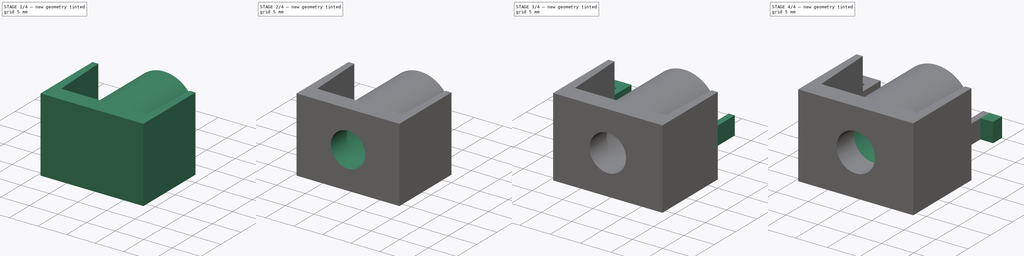
[diagram: build sequence overview — one tinted view per stage of 4, left to right]
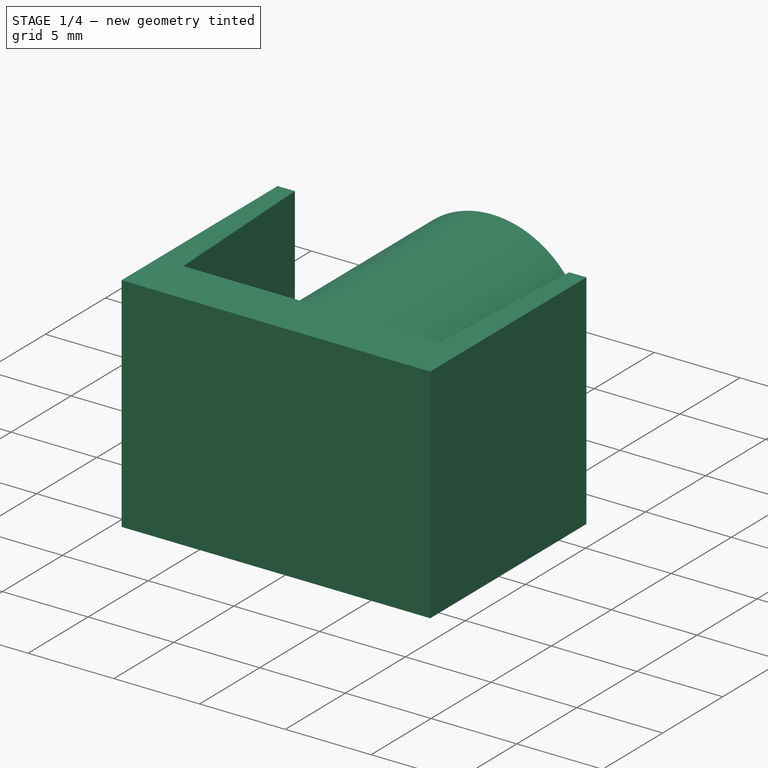
[diagram: stage 1 of 4 — iso view after this stage's code; geometry added in this stage tinted green]
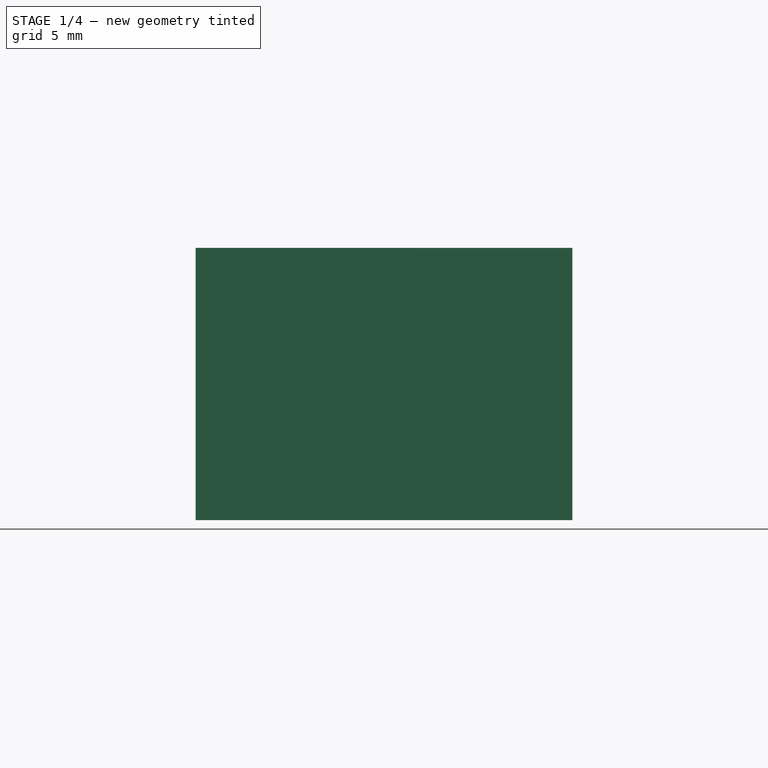
[diagram: stage 1 of 4 — front view after this stage's code; geometry added in this stage tinted green]
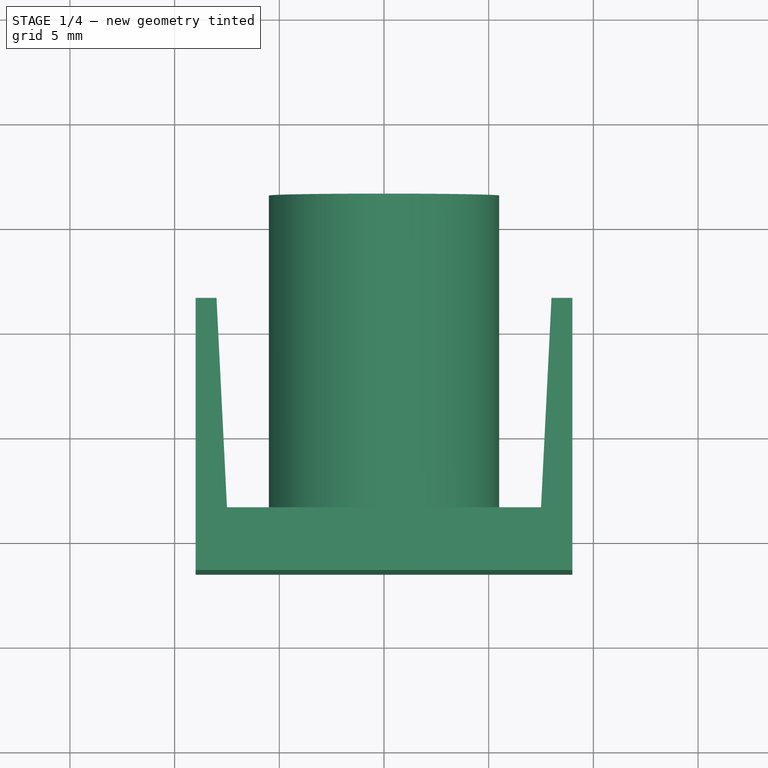
[diagram: stage 1 of 4 — top view after this stage's code; geometry added in this stage tinted green]
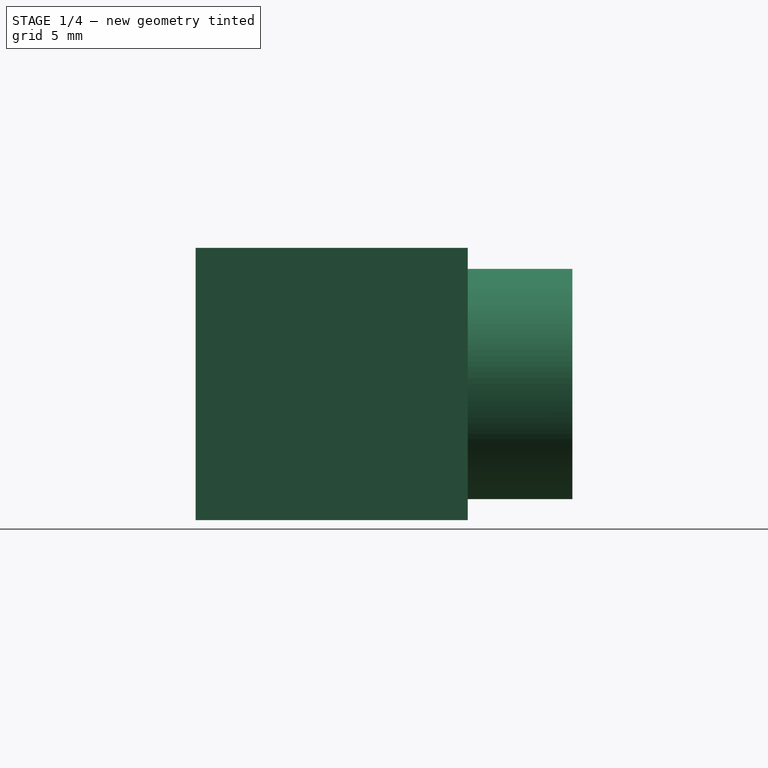
[diagram: stage 1 of 4 — right view after this stage's code; geometry added in this stage tinted green]
FCSTD DOCUMENT  (FreeCAD 0.19R23578 (Git))
Label: reel_lamp_holder
Comment: Reel lamp holder for WS212B led modules
License: All rights reserved
LicenseURL: http://en.wikipedia.org/wiki/All_rights_reserved
objects: Sketcher::SketchObject×10, PartDesign::Pad×7, PartDesign::Pocket×2, PartDesign::Body×1
note: 29 computed .brp shape members not serialized (recipe doc carries the construction recipe); baked Part::Feature solids carry a one-line shape summary decoded from their .brp

FEATURE [Sketcher::SketchObject] Sketch
  MapMode = 5
  Support = -> [XY_Plane]
  sketch-geometry (8):
    g0: LineSegment StartX=-7.5 StartY=1.5 StartZ=0 EndX=7.5 EndY=1.5 EndZ=0
    g1: LineSegment StartX=9 StartY=-1.5 StartZ=0 EndX=-9 EndY=-1.5 EndZ=0
    g2: LineSegment StartX=7.5 StartY=1.5 StartZ=0 EndX=8 EndY=11.5 EndZ=0
    g3: LineSegment StartX=9 StartY=-1.5 StartZ=0 EndX=9 EndY=11.5 EndZ=0
    g4: LineSegment StartX=-7.5 StartY=1.5 StartZ=0 EndX=-8 EndY=11.5 EndZ=0
    g5: LineSegment StartX=-9 StartY=-1.5 StartZ=0 EndX=-9 EndY=11.5 EndZ=0
    g6: LineSegment StartX=-9 StartY=11.5 StartZ=0 EndX=-8 EndY=11.5 EndZ=0
    g7: LineSegment StartX=8 StartY=11.5 StartZ=0 EndX=9 EndY=11.5 EndZ=0
  constraints (21):
    c: DistanceX(g0,g0) = 15
    c: DistanceY(g1,g0) = 3
    c: Symmetric(g0,g0,g-2)
    c: Coincident(g2,g0)
    c: Coincident(g4,g0)
    c: Coincident(g5,g1)
    c: DistanceY(g5,g4) = 0
    c: DistanceY(g3,g2) = 0
    c: DistanceX(g5,g4) = 1
    c: DistanceX(g2,g3) = 1
    c: Coincident(g6,g5)
    c: Coincident(g6,g4)
    c: Coincident(g7,g2)
    c: Coincident(g7,g3)
    c: Distance(g5) = 13
    c: Symmetric(g4,g2,g-2)
    c: DistanceX(g5,g3) = 18
    c: DistanceX(g1,g1) = 18
    c: Symmetric(g1,g1,g-2)
    c: DistanceY(g1,g-1) = 1.5
    c: Coincident(g3,g1)
FEATURE [PartDesign::Pad] Pad
  Direction = (1,1,1)
  Length = 13
  Length2 = 100
  Profile = -> Sketch
  Type = 0
FEATURE [Sketcher::SketchObject] Sketch001
  ExternalGeometry = -> [Pad]
  MapMode = 5
  Placement = pos=(0,1.5,0) rot=(0,0.707107,0.707107;3.14159rad)
  Support = -> [Pad]
  sketch-geometry (1):
    g0: Circle CenterX=0 CenterY=6.5 CenterZ=0 NormalX=0 NormalY=0 NormalZ=1 AngleXU=0 Radius=5.5
  constraints (3):
    c: Radius(g0) = 5.5
    c: PointOnObject(g0,g-2)
    c: DistanceY(g-1,g0) = 6.5
FEATURE [PartDesign::Pad] Pad001
  BaseFeature = -> Pad
  Direction = (1,1,1)
  Length = 15
  Length2 = 100
  Profile = -> Sketch001
  Type = 0
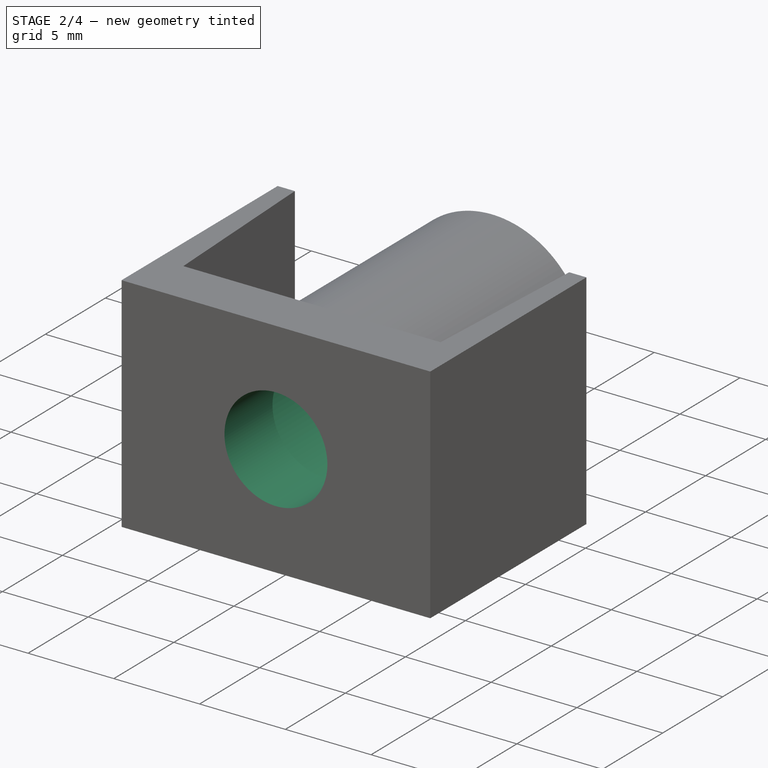
[diagram: stage 2 of 4 — iso view after this stage's code; geometry added in this stage tinted green]
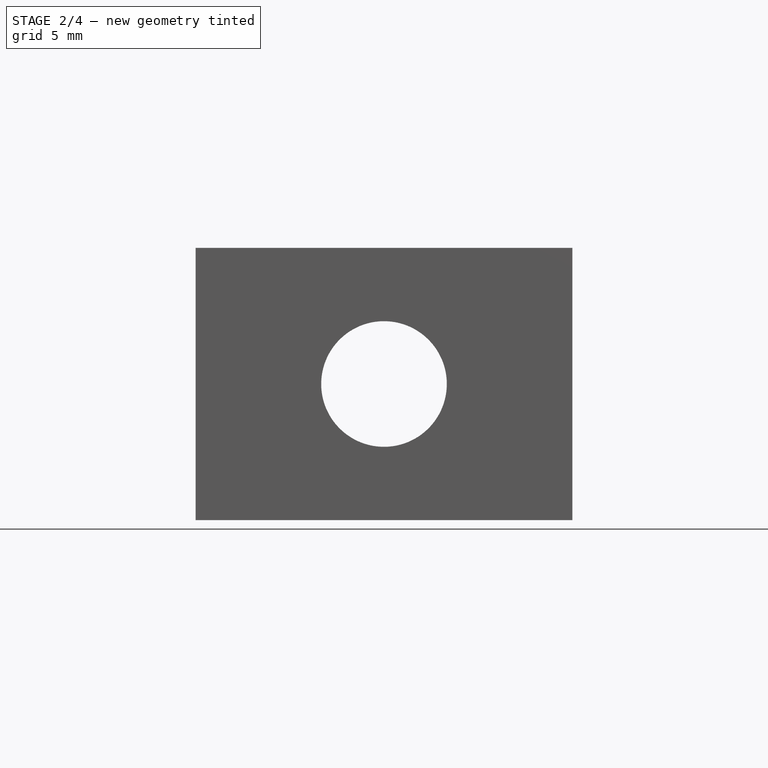
[diagram: stage 2 of 4 — front view after this stage's code; geometry added in this stage tinted green]
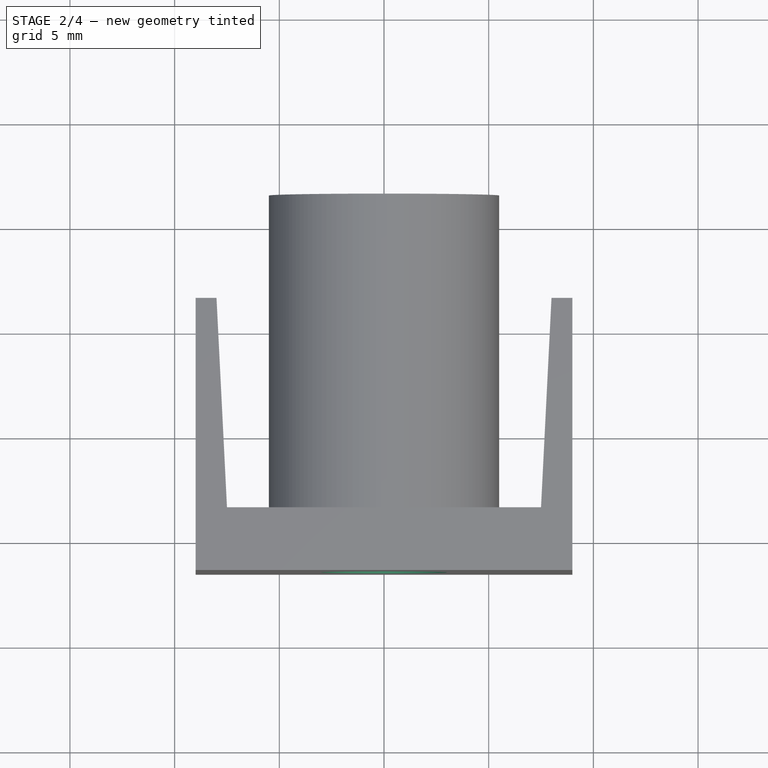
[diagram: stage 2 of 4 — top view after this stage's code; geometry added in this stage tinted green]
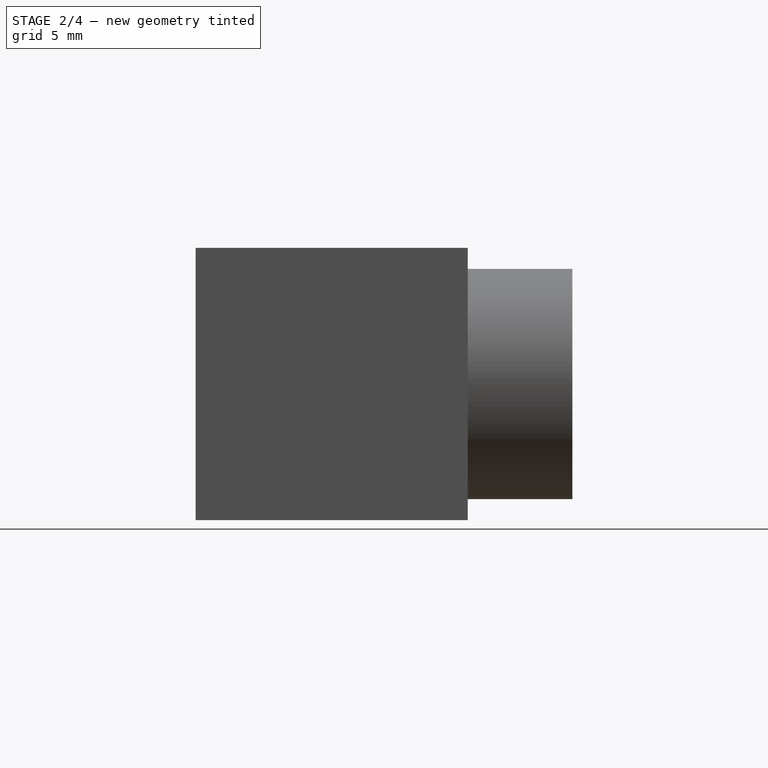
[diagram: stage 2 of 4 — right view after this stage's code; geometry added in this stage tinted green]
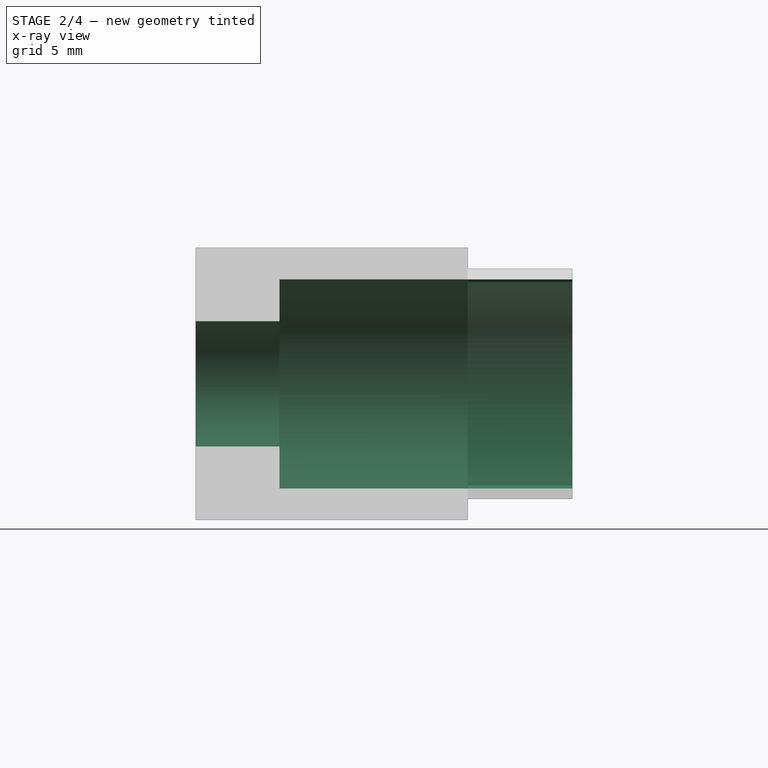
[diagram: stage 2 of 4 — x-ray composite at the right view; earlier geometry ghosted, this stage's added geometry solid]
FEATURE [Sketcher::SketchObject] Sketch002
  ExternalGeometry = -> [Pad001]
  MapMode = 5
  Placement = pos=(0,16.5,-3.5e-15) rot=(0,0.707107,0.707107;3.14159rad)
  Support = -> [Pad001]
  sketch-geometry (1):
    g0: Circle CenterX=-2e-16 CenterY=6.5 CenterZ=0 NormalX=0 NormalY=0 NormalZ=1 AngleXU=0 Radius=5
  constraints (2):
    c: Coincident(g0,g-3)
    c: Radius(g0) = 5
FEATURE [PartDesign::Pocket] Pocket
  BaseFeature = -> Pad001
  Length = 14
  Length2 = 100
  Profile = -> Sketch002
  Type = 0
FEATURE [Sketcher::SketchObject] Sketch003
  ExternalGeometry = -> [Pocket]
  MapMode = 5
  Placement = pos=(-6e-16,2.5,-1e-15) rot=(0,0.707107,0.707107;3.14159rad)
  Support = -> [Pocket]
  sketch-geometry (1):
    g0: Circle CenterX=0 CenterY=6.5 CenterZ=0 NormalX=0 NormalY=0 NormalZ=1 AngleXU=0 Radius=3
  constraints (2):
    c: Radius(g0) = 3
    c: Coincident(g0,g-3)
FEATURE [PartDesign::Pocket] Pocket001
  BaseFeature = -> Pocket
  Length = 5
  Length2 = 100
  Profile = -> Sketch003
  Type = 1
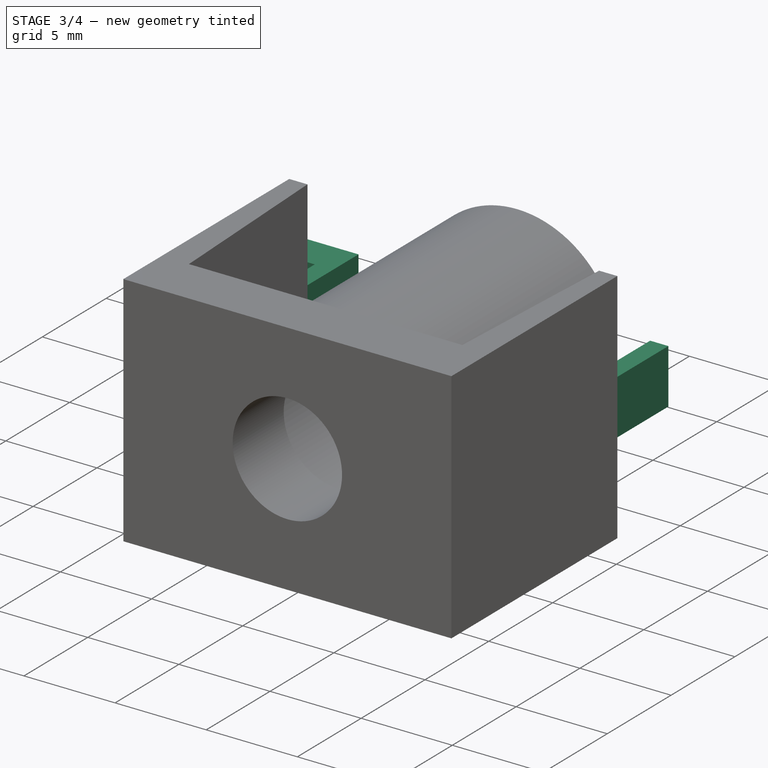
[diagram: stage 3 of 4 — iso view after this stage's code; geometry added in this stage tinted green]
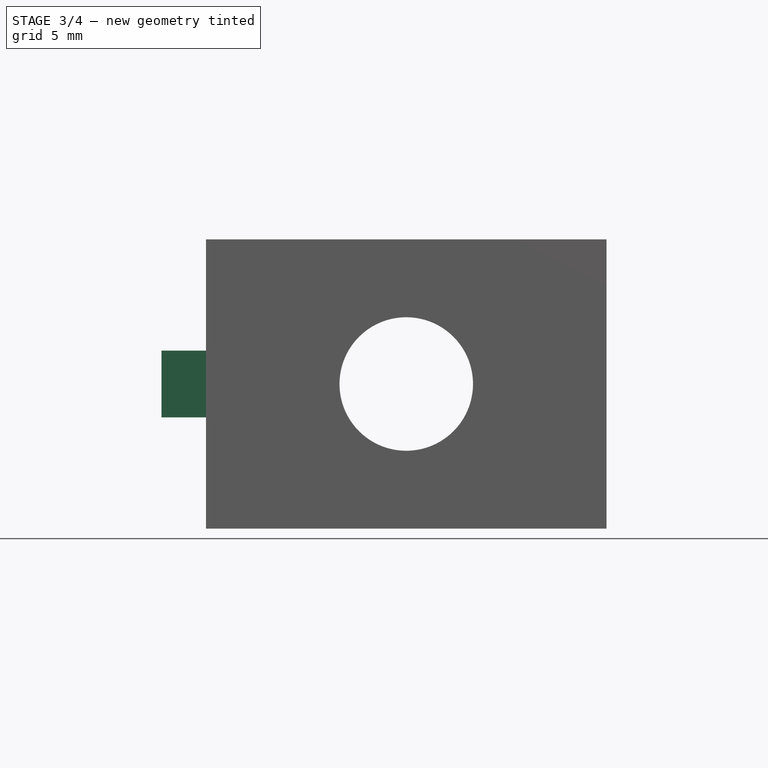
[diagram: stage 3 of 4 — front view after this stage's code; geometry added in this stage tinted green]
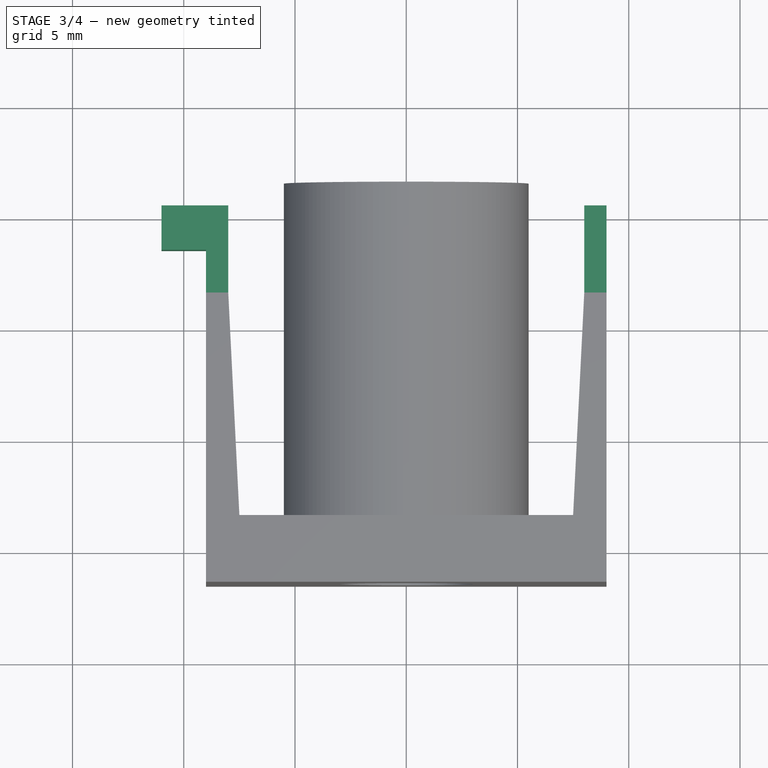
[diagram: stage 3 of 4 — top view after this stage's code; geometry added in this stage tinted green]
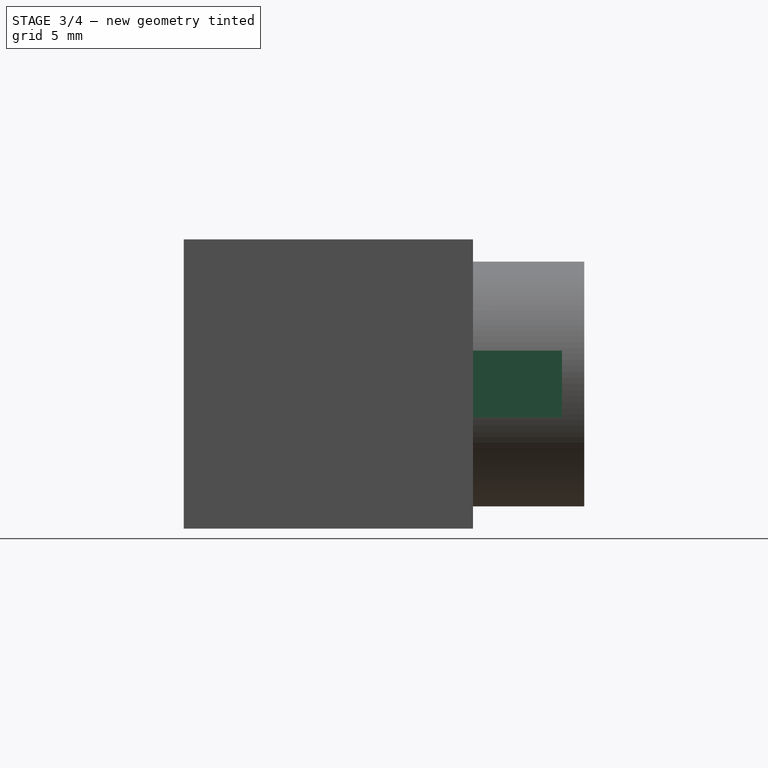
[diagram: stage 3 of 4 — right view after this stage's code; geometry added in this stage tinted green]
FEATURE [Sketcher::SketchObject] Sketch004
  MapMode = 5
  Placement = pos=(-9,0,0) rot=(0.57735,-0.57735,-0.57735;2.0944rad)
  Support = -> [Pocket001]
FEATURE [Sketcher::SketchObject] Sketch005
  ExternalGeometry = -> [Pocket001]
  MapMode = 5
  Placement = pos=(0,11.5,0) rot=(0,0.707107,0.707107;3.14159rad)
  Support = -> [Pocket001]
  expr: Constraints[11] = 13 / 2 - 1.5
  sketch-geometry (4):
    g0: LineSegment StartX=8 StartY=8 StartZ=0 EndX=9 EndY=8 EndZ=0
    g1: LineSegment StartX=9 StartY=8 StartZ=0 EndX=9 EndY=5 EndZ=0
    g2: LineSegment StartX=9 StartY=5 StartZ=0 EndX=8 EndY=5 EndZ=0
    g3: LineSegment StartX=8 StartY=5 StartZ=0 EndX=8 EndY=8 EndZ=0
  constraints (12):
    c: Coincident(g0,g1)
    c: Coincident(g1,g2)
    c: Coincident(g2,g3)
    c: Coincident(g3,g0)
    c: Horizontal(g0)
    c: Horizontal(g2)
    c: Vertical(g1)
    c: Vertical(g3)
    c: DistanceY(g1,g1) = 3
    c: DistanceX(g0,g0) = 1
    c: PointOnObject(g0,g-5)
    c: DistanceY(g0,g-4) = 5
FEATURE [PartDesign::Pad] Pad002
  BaseFeature = -> Pocket001
  Direction = (1,1,1)
  Length = 4
  Length2 = 100
  Profile = -> Sketch005
  Type = 0
FEATURE [Sketcher::SketchObject] Sketch006
  ExternalGeometry = -> [Pad002]
  MapMode = 5
  Placement = pos=(0,11.5,0) rot=(0,0.707107,0.707107;3.14159rad)
  Support = -> [Pad002]
  sketch-geometry (4):
    g0: LineSegment StartX=-9 StartY=8 StartZ=0 EndX=-8 EndY=8 EndZ=0
    g1: LineSegment StartX=-8 StartY=8 StartZ=0 EndX=-8 EndY=5 EndZ=0
    g2: LineSegment StartX=-8 StartY=5 StartZ=0 EndX=-9 EndY=5 EndZ=0
    g3: LineSegment StartX=-9 StartY=5 StartZ=0 EndX=-9 EndY=8 EndZ=0
  constraints (12):
    c: Coincident(g0,g1)
    c: Coincident(g1,g2)
    c: Coincident(g2,g3)
    c: Coincident(g3,g0)
    c: Horizontal(g0)
    c: Horizontal(g2)
    c: Vertical(g1)
    c: Vertical(g3)
    c: DistanceY(g-9,g0) = 0
    c: DistanceY(g-9,g1) = 0
    c: DistanceX(g-5,g0) = 0
    c: DistanceX(g-5,g0) = 0
FEATURE [PartDesign::Pad] Pad003
  BaseFeature = -> Pad002
  Direction = (1,1,1)
  Length = 4
  Length2 = 100
  Profile = -> Sketch006
  Type = 0
FEATURE [Sketcher::SketchObject] Sketch007
  ExternalGeometry = -> [Pad003]
  MapMode = 5
  Placement = pos=(-9,0,0) rot=(0.57735,-0.57735,-0.57735;2.0944rad)
  Support = -> [Pad003]
  sketch-geometry (4):
    g0: LineSegment StartX=-15.5 StartY=8 StartZ=0 EndX=-13.5 EndY=8 EndZ=0
    g1: LineSegment StartX=-13.5 StartY=8 StartZ=0 EndX=-13.5 EndY=5 EndZ=0
    g2: LineSegment StartX=-13.5 StartY=5 StartZ=0 EndX=-15.5 EndY=5 EndZ=0
    g3: LineSegment StartX=-15.5 StartY=5 StartZ=0 EndX=-15.5 EndY=8 EndZ=0
  constraints (10):
    c: Coincident(g0,g1)
    c: Coincident(g1,g2)
    c: Coincident(g2,g3)
    c: Coincident(g3,g0)
    c: Horizontal(g0)
    c: Horizontal(g2)
    c: Vertical(g1)
    c: Distance(g2) = 2
    c: Coincident(g0,g-4)
    c: Coincident(g2,g-5)
FEATURE [PartDesign::Pad] Pad004
  BaseFeature = -> Pad003
  Direction = (1,1,1)
  Length = 2
  Length2 = 100
  Profile = -> Sketch007
  Type = 0
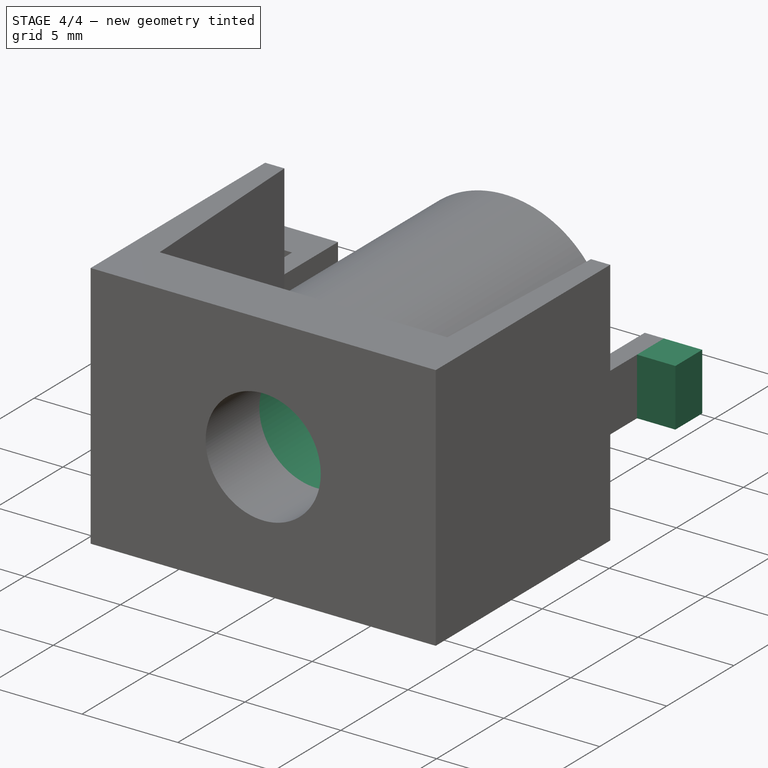
[diagram: stage 4 of 4 — iso view after this stage's code; geometry added in this stage tinted green]
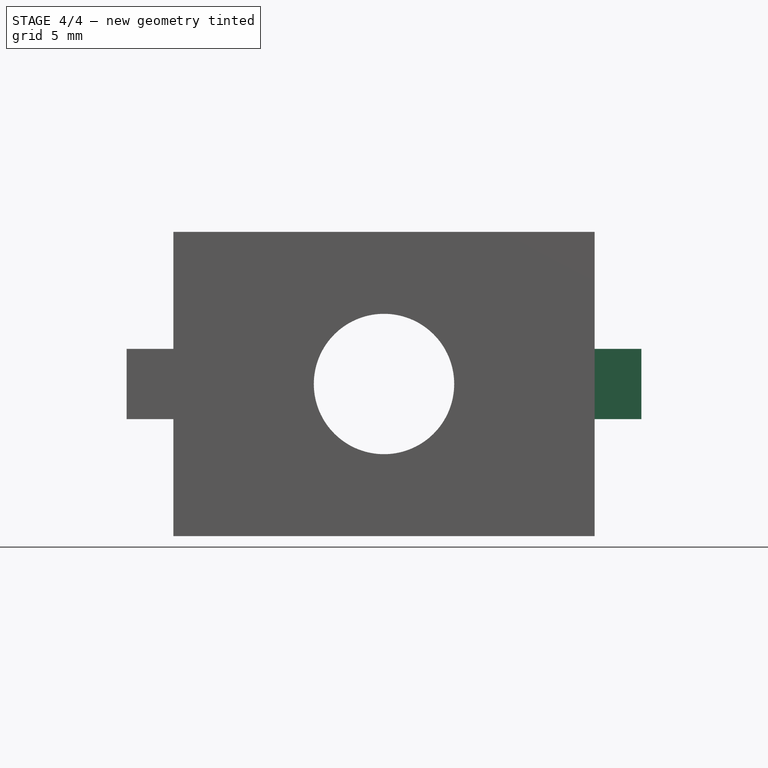
[diagram: stage 4 of 4 — front view after this stage's code; geometry added in this stage tinted green]
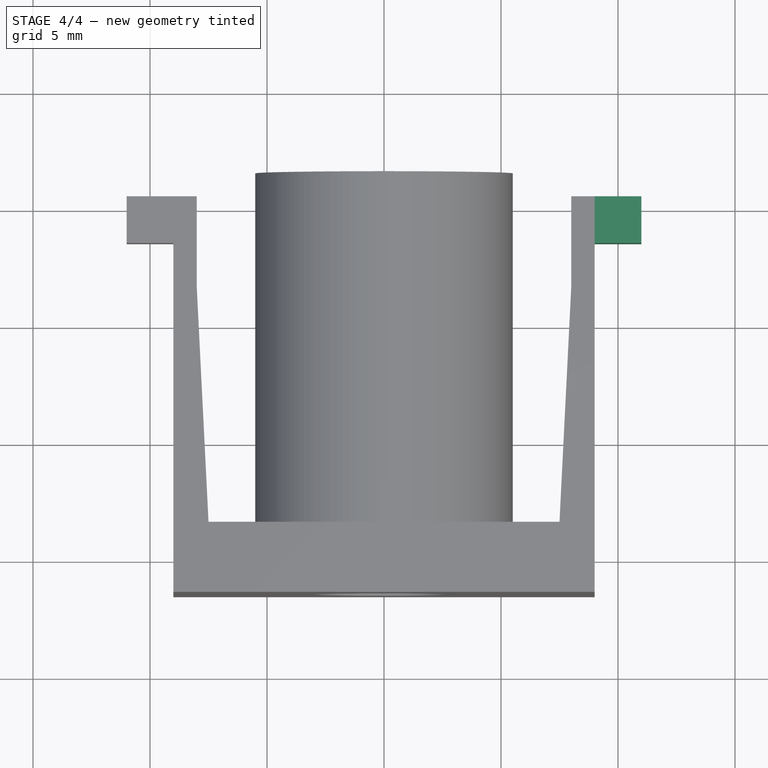
[diagram: stage 4 of 4 — top view after this stage's code; geometry added in this stage tinted green]
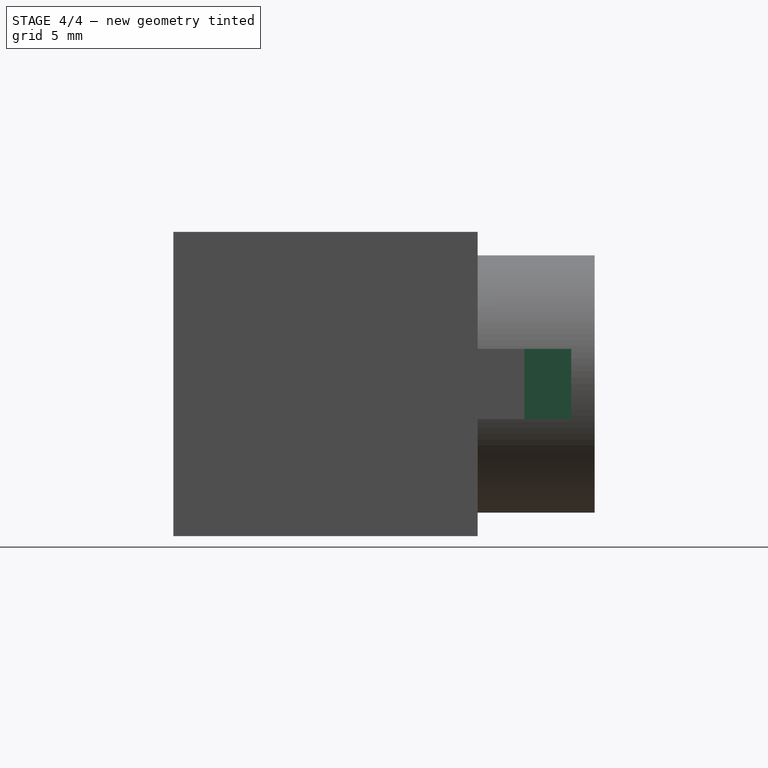
[diagram: stage 4 of 4 — right view after this stage's code; geometry added in this stage tinted green]
FEATURE [Sketcher::SketchObject] Sketch008
  ExternalGeometry = -> [Pad004]
  MapMode = 5
  Placement = pos=(9,0,0) rot=(0.57735,0.57735,0.57735;2.0944rad)
  Support = -> [Pad004]
  sketch-geometry (4):
    g0: LineSegment StartX=13.5 StartY=8 StartZ=0 EndX=15.5 EndY=8 EndZ=0
    g1: LineSegment StartX=15.5 StartY=8 StartZ=0 EndX=15.5 EndY=5 EndZ=0
    g2: LineSegment StartX=15.5 StartY=5 StartZ=0 EndX=13.5 EndY=5 EndZ=0
    g3: LineSegment StartX=13.5 StartY=5 StartZ=0 EndX=13.5 EndY=8 EndZ=0
  constraints (10):
    c: Coincident(g0,g1)
    c: Coincident(g1,g2)
    c: Coincident(g2,g3)
    c: Coincident(g3,g0)
    c: Horizontal(g0)
    c: Horizontal(g2)
    c: Vertical(g3)
    c: Coincident(g0,g-4)
    c: Coincident(g1,g-5)
    c: Distance(g0) = 2
FEATURE [PartDesign::Pad] Pad005
  BaseFeature = -> Pad004
  Direction = (1,1,1)
  Length = 2
  Length2 = 100
  Profile = -> Sketch008
  Type = 0
FEATURE [Sketcher::SketchObject] Sketch009
  ExternalGeometry = -> [Pad005]
  MapMode = 5
  Placement = pos=(-6e-16,2.5,-1e-15) rot=(0,0.707107,0.707107;3.14159rad)
  Support = -> [Pad005]
  sketch-geometry (2):
    g0: Circle CenterX=0 CenterY=6.5 CenterZ=0 NormalX=0 NormalY=0 NormalZ=1 AngleXU=0 Radius=5
    g1: Circle CenterX=0 CenterY=6.5 CenterZ=0 NormalX=0 NormalY=0 NormalZ=1 AngleXU=0 Radius=4.5
  constraints (4):
    c: Coincident(g0,g-3)
    c: Radius(g0) = 5
    c: Coincident(g1,g0)
    c: Radius(g1) = 4.5
FEATURE [PartDesign::Pad] Pad006
  BaseFeature = -> Pad005
  Direction = (1,1,1)
  Length = 13
  Length2 = 100
  Profile = -> Sketch009
  Type = 0
FEATURE [PartDesign::Body] Body
  Group = -> [Sketch,Pad,Sketch001,Pad001,Sketch002,Pocket,Sketch003,Pocket001,Sketch004,Sketch005,Pad002,Sketch006,Pad003,Sketch007,Pad004,Sketch008,Pad005,Sketch009,Pad006]
  Origin = -> Origin
  Tip = -> Pad006
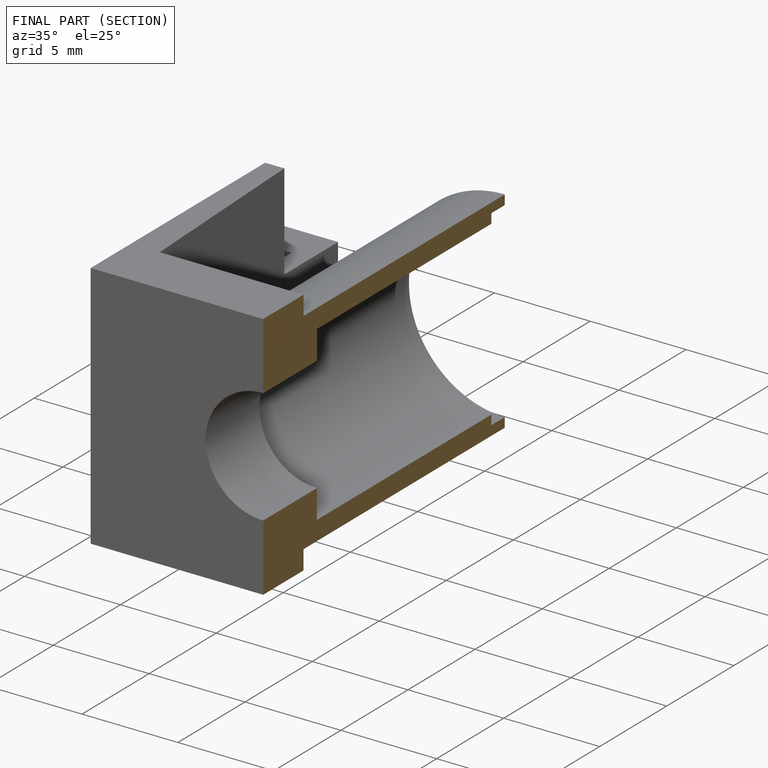
[diagram: finished part — half-section view (interior)]
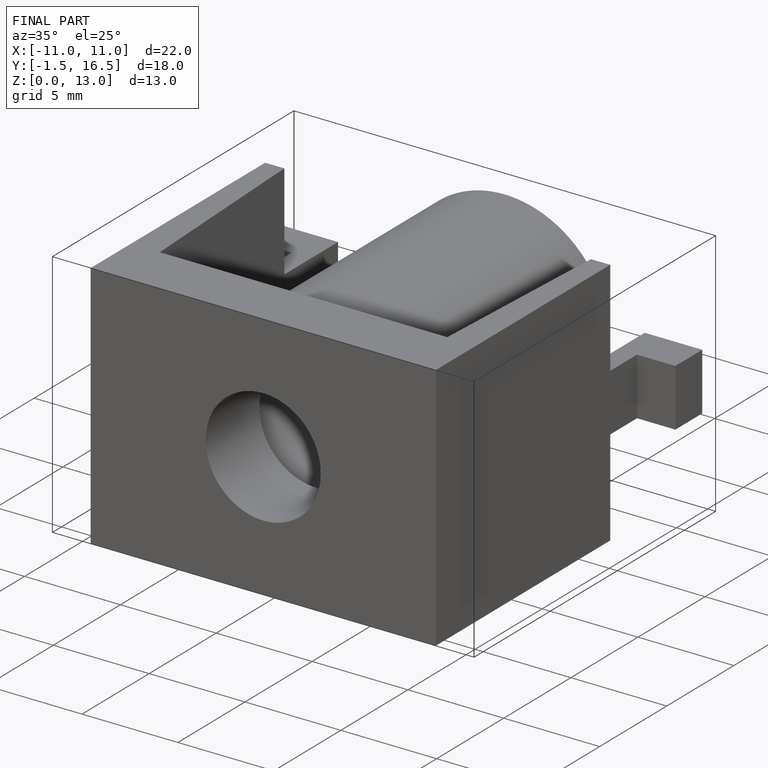
[diagram: finished part — iso view with bounding-box wireframe]
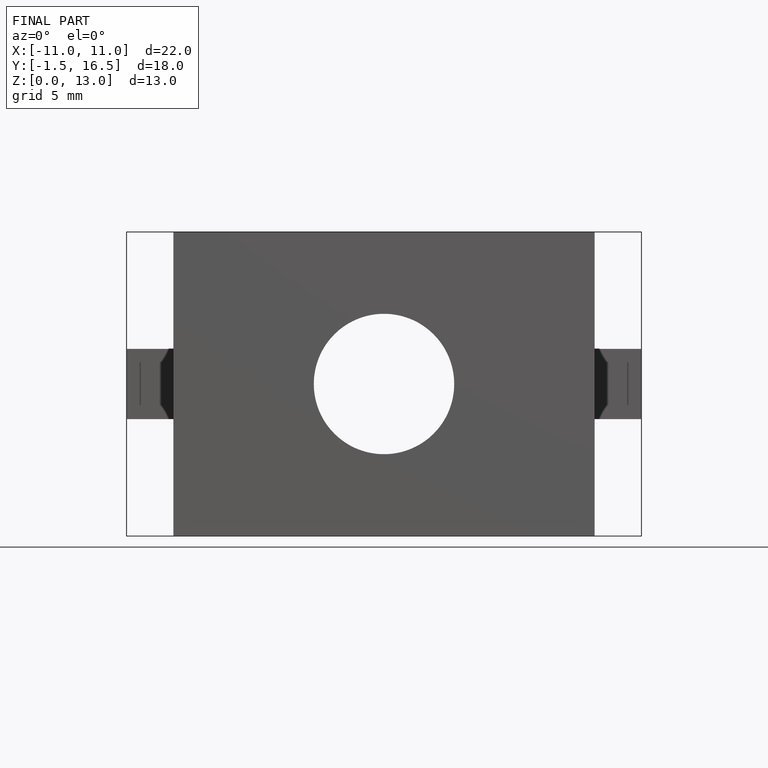
[diagram: finished part — front view with bounding-box wireframe]
